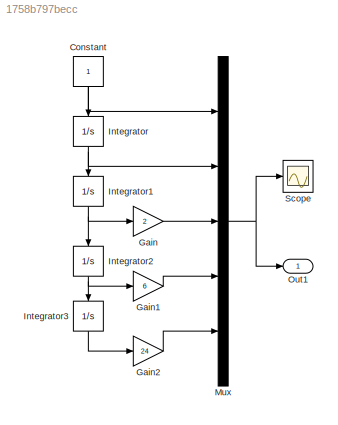
MODEL slx_1758b797becc
KIND model
CONFIG AbsTol = auto
CONFIG EnableMultiTasking = off
CONFIG FixedStep = auto
CONFIG MaxStep = auto
CONFIG MinStep = auto
CONFIG RelTol = 1e-3
CONFIG SampleTimeConstraint = Unconstrained
CONFIG SolverName = VariableStepAuto
CONFIG StartTime = 0.0
CONFIG StopTime = 10.0
BLOCK [Constant] Constant
  NameLocation = left
BLOCK [Gain] Gain
  Gain = 2
BLOCK [Gain] Gain1
  Gain = 6
BLOCK [Gain] Gain2
  Gain = 24
BLOCK [Integrator] Integrator
  NameLocation = left
BLOCK [Integrator] Integrator1
  NameLocation = left
BLOCK [Integrator] Integrator2
  NameLocation = left
BLOCK [Integrator] Integrator3
  NameLocation = left
BLOCK [Mux] Mux
  DisplayOption = bar
  Inputs = 5
BLOCK [Outport] Out1
BLOCK [Scope] Scope
  Floating = off
  NumInputPorts = 1
  ScopeSpecificationString = Simulink.scopes.TimeScopeBlockCfg('CurrentConfiguration', extmgr.ConfigurationSet(extmgr.Configuration('Core','General UI',true),extmgr.Configuration('Core','Source UI',true),extmgr.Configuration('Sources','WiredSimulink',true),extmgr.Configuration('Visuals','Time Domain',true,'SerializedDisplays',{struct('MinYLimReal','-1250.00000','MaxYLimReal','11250.00000','YLabelReal','','MinYLimMag','  0.000...<+1420ch>
NET Constant:1 -> Integrator:1, Mux:1
LINE Gain1:1 -> Mux:4
LINE Gain2:1 -> Mux:5
LINE Gain:1 -> Mux:3
NET Integrator1:1 -> Gain:1, Integrator2:1
NET Integrator2:1 -> Gain1:1, Integrator3:1
LINE Integrator3:1 -> Gain2:1
NET Integrator:1 -> Integrator1:1, Mux:2
NET Mux:1 -> Out1:1, Scope:1
note: NET lines group one-source signal fan-out (src -> all destinations, sorted); 1:1 wires keep LINE
